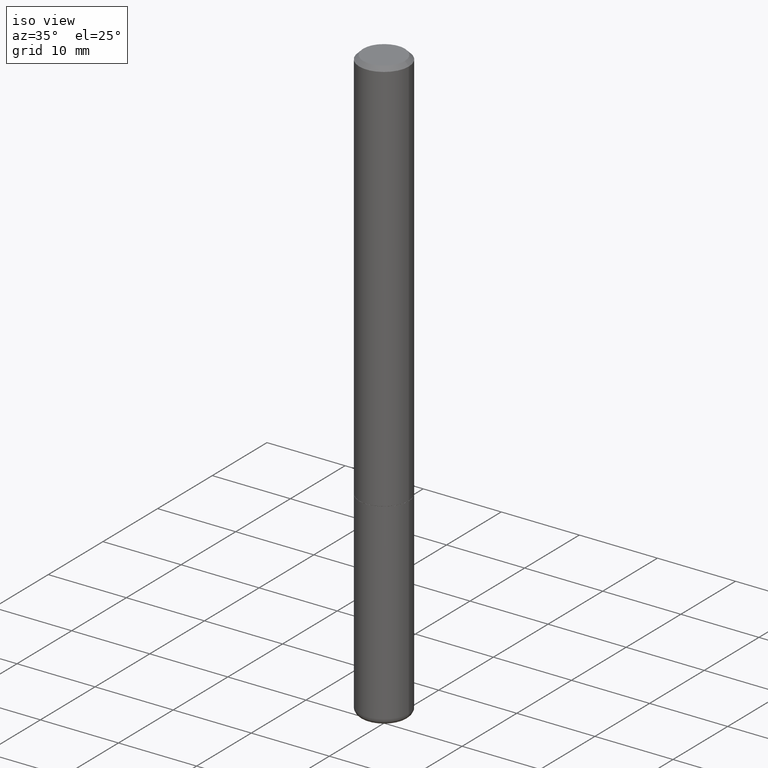
[diagram: clean part render]
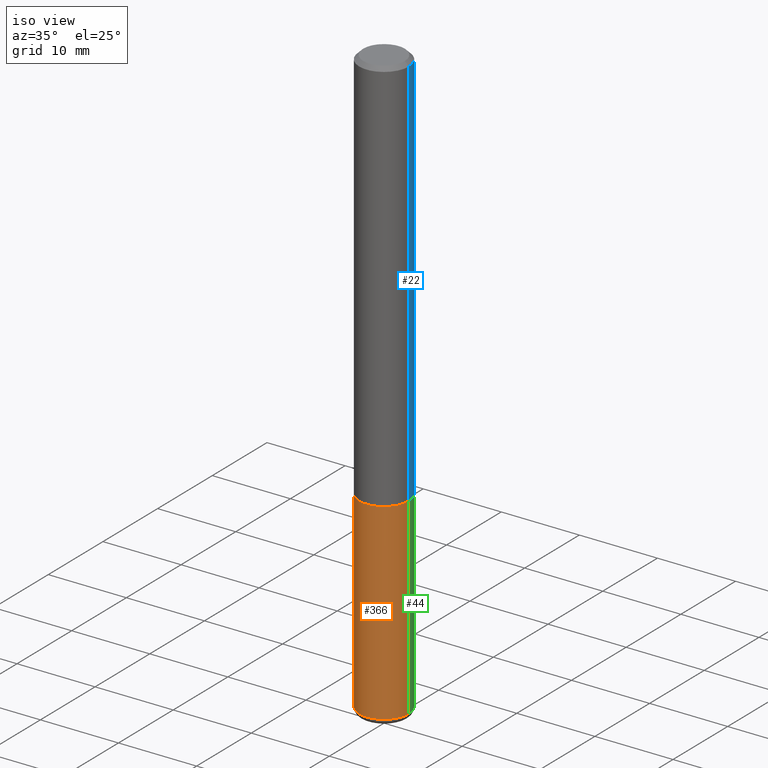
[diagram: same view with three faces highlighted in distinct colors, each labeled with its STEP entity id]
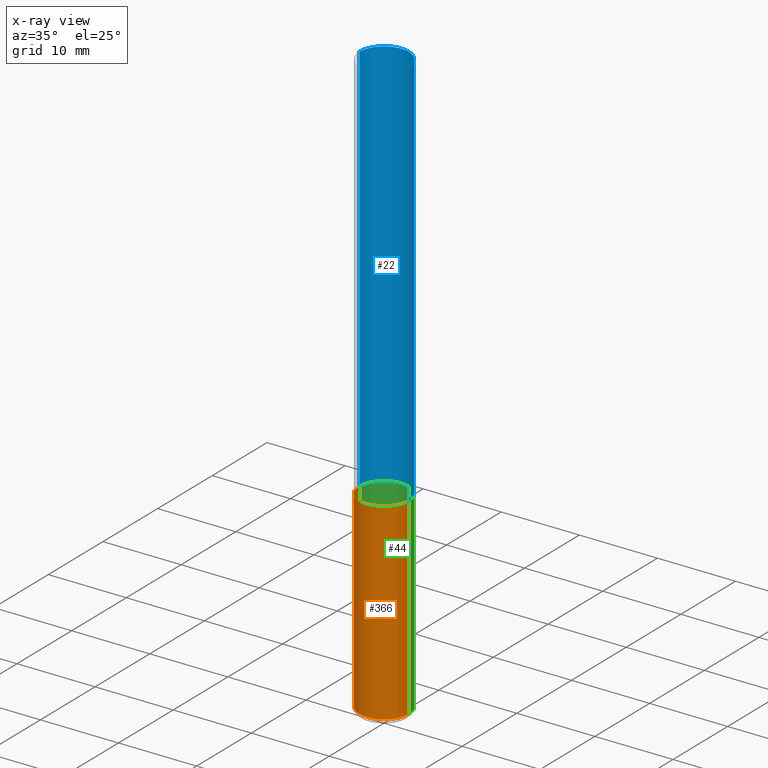
[diagram: x-ray of the same camera — body ghosted, the three highlighted faces saturated]
A machine part, iso view with three faces highlighted in distinct colors.
The next image is the same camera in x-ray (body ghosted, the three faces saturated) — at least one of them is partly hidden behind the body in this view.
Their STEP definitions:

[orange] entity #366 — the highlighted cylindrical surface (edge-blend (fillet) strip) has radius 3.175 mm, axis along (-0, 0, 1).
#31 = CARTESIAN_POINT ( 'NONE',  ( -0.1250000000000000000, -7.788152707325093026E-15, -2.000000000000000444 ) ) ;
#52 = CARTESIAN_POINT ( 'NONE',  ( 0.1249999999999998473, -1.124256991107492474E-14, -2.970000000000000195 ) ) ;
#58 = CIRCLE ( 'NONE', #373, 0.1250000000000000000 ) ;
#64 = CYLINDRICAL_SURFACE ( 'NONE', #200, 0.1250000000000000000 ) ;
#69 = CIRCLE ( 'NONE', #361, 0.1250000000000000000 ) ;
#75 = CARTESIAN_POINT ( 'NONE',  ( 7.263042354369856275E-29, -1.036969957636414298E-14, -2.970000000000000195 ) ) ;
#87 = VERTEX_POINT ( 'NONE', #103 ) ;
#103 = CARTESIAN_POINT ( 'NONE',  ( 0.1250000000000000000, -7.855833012397075293E-15, -2.000000000000000444 ) ) ;
#119 = CARTESIAN_POINT ( 'NONE',  ( 0.000000000000000000, 0.000000000000000000, 0.000000000000000000 ) ) ;
#121 = DIRECTION ( 'NONE',  ( 1.000000000000000000, -6.982962677686266711E-15, 4.876176775795935793E-29 ) ) ;
#146 = VECTOR ( 'NONE', #385, 39.37007874015748143 ) ;
#148 = DIRECTION ( 'NONE',  ( -2.445468806185136597E-29, 3.491481338843145583E-15, 1.000000000000000000 ) ) ;
#154 = EDGE_LOOP ( 'NONE', ( #346, #284, #320, #377 ) ) ;
#158 = DIRECTION ( 'NONE',  ( -2.445468806185136597E-29, 3.491481338843145583E-15, 1.000000000000000000 ) ) ;
#182 = DIRECTION ( 'NONE',  ( 1.000000000000000000, -6.982962677686262766E-15, 0.000000000000000000 ) ) ;
#187 = CARTESIAN_POINT ( 'NONE',  ( -0.1249999999999998473, -9.481521156664020907E-15, -2.970000000000000195 ) ) ;
#200 = AXIS2_PLACEMENT_3D ( 'NONE', #119, #158, #121 ) ;
#202 = DIRECTION ( 'NONE',  ( 1.000000000000000000, -6.982962677686262766E-15, 0.000000000000000000 ) ) ;
#227 = LINE ( 'NONE', #388, #280 ) ;
#241 = EDGE_CURVE ( 'NONE', #407, #315, #58, .T. ) ;
#245 = EDGE_CURVE ( 'NONE', #315, #87, #227, .T. ) ;
#246 = CARTESIAN_POINT ( 'NONE',  ( 4.890937612370273754E-29, -6.982962677686291954E-15, -2.000000000000000444 ) ) ;
#258 = DIRECTION ( 'NONE',  ( -2.445468806185136597E-29, 3.491481338843145583E-15, 1.000000000000000000 ) ) ;
#280 = VECTOR ( 'NONE', #314, 39.37007874015748143 ) ;
#284 = ORIENTED_EDGE ( 'NONE', *, *, #241, .T. ) ;
#308 = EDGE_CURVE ( 'NONE', #384, #87, #69, .T. ) ;
#314 = DIRECTION ( 'NONE',  ( -2.445468806185136877E-29, 3.491481338843145188E-15, 1.000000000000000000 ) ) ;
#315 = VERTEX_POINT ( 'NONE', #52 ) ;
#320 = ORIENTED_EDGE ( 'NONE', *, *, #245, .T. ) ;
#332 = FACE_OUTER_BOUND ( 'NONE', #154, .T. ) ;
#346 = ORIENTED_EDGE ( 'NONE', *, *, #403, .F. ) ;
#355 = LINE ( 'NONE', #386, #146 ) ;
#361 = AXIS2_PLACEMENT_3D ( 'NONE', #246, #148, #182 ) ;
#366 = ADVANCED_FACE ( 'NONE', ( #332 ), #64, .T. ) ;
#373 = AXIS2_PLACEMENT_3D ( 'NONE', #75, #258, #202 ) ;
#377 = ORIENTED_EDGE ( 'NONE', *, *, #308, .F. ) ;
#384 = VERTEX_POINT ( 'NONE', #31 ) ;
#385 = DIRECTION ( 'NONE',  ( -2.445468806185136877E-29, 3.491481338843145188E-15, 1.000000000000000000 ) ) ;
#386 = CARTESIAN_POINT ( 'NONE',  ( -0.1250000000000000000, 8.881784197001252323E-16, -6.148668862818632227E-30 ) ) ;
#388 = CARTESIAN_POINT ( 'NONE',  ( 0.1250000000000000000, -8.728703347107833388E-16, 6.095220969744919741E-30 ) ) ;
#403 = EDGE_CURVE ( 'NONE', #407, #384, #355, .T. ) ;
#407 = VERTEX_POINT ( 'NONE', #187 ) ;

[blue] entity #22 — the highlighted cylindrical surface (edge-blend (fillet) strip) has radius 3.175 mm, axis along (-0, 0, 1).
#2 = EDGE_CURVE ( 'NONE', #89, #54, #96, .T. ) ;
#12 = ORIENTED_EDGE ( 'NONE', *, *, #363, .F. ) ;
#22 = ADVANCED_FACE ( 'NONE', ( #25 ), #147, .T. ) ;
#25 = FACE_OUTER_BOUND ( 'NONE', #273, .T. ) ;
#39 = DIRECTION ( 'NONE',  ( -2.445468806185136597E-29, 3.491481338843145583E-15, 1.000000000000000000 ) ) ;
#43 = LINE ( 'NONE', #274, #111 ) ;
#54 = VERTEX_POINT ( 'NONE', #63 ) ;
#56 = AXIS2_PLACEMENT_3D ( 'NONE', #368, #39, #131 ) ;
#60 = EDGE_CURVE ( 'NONE', #216, #89, #199, .T. ) ;
#63 = CARTESIAN_POINT ( 'NONE',  ( -0.1249999999999999584, 8.030407079339200406E-16, -0.02000000000000006287 ) ) ;
#66 = CARTESIAN_POINT ( 'NONE',  ( 4.890937612370288923E-31, -6.982962677686312563E-17, -0.02000000000000006287 ) ) ;
#72 = CARTESIAN_POINT ( 'NONE',  ( 0.1249999999999999584, -9.273918764983043491E-16, -0.02000000000000006287 ) ) ;
#73 = AXIS2_PLACEMENT_3D ( 'NONE', #294, #252, #91 ) ;
#89 = VERTEX_POINT ( 'NONE', #224 ) ;
#91 = DIRECTION ( 'NONE',  ( 1.000000000000000000, -6.982962677686266711E-15, 4.876176775795935232E-29 ) ) ;
#96 = LINE ( 'NONE', #177, #334 ) ;
#111 = VECTOR ( 'NONE', #404, 39.37007874015748143 ) ;
#113 = VERTEX_POINT ( 'NONE', #72 ) ;
#131 = DIRECTION ( 'NONE',  ( 1.000000000000000000, -6.982962677686264344E-15, 0.000000000000000000 ) ) ;
#147 = CYLINDRICAL_SURFACE ( 'NONE', #73, 0.1250000000000001110 ) ;
#177 = CARTESIAN_POINT ( 'NONE',  ( -0.1250000000000001110, 8.881784197001260212E-16, -6.148668862818637832E-30 ) ) ;
#183 = AXIS2_PLACEMENT_3D ( 'NONE', #66, #257, #262 ) ;
#199 = CIRCLE ( 'NONE', #56, 0.1250000000000002498 ) ;
#216 = VERTEX_POINT ( 'NONE', #303 ) ;
#219 = CIRCLE ( 'NONE', #183, 0.1249999999999999584 ) ;
#224 = CARTESIAN_POINT ( 'NONE',  ( -0.1250000000000002776, -2.636471991862024185E-15, -1.999000000000000110 ) ) ;
#248 = ORIENTED_EDGE ( 'NONE', *, *, #2, .T. ) ;
#252 = DIRECTION ( 'NONE',  ( -2.445468806185136597E-29, 3.491481338843145583E-15, 1.000000000000000000 ) ) ;
#257 = DIRECTION ( 'NONE',  ( -2.445468806185136597E-29, 3.491481338843145583E-15, 1.000000000000000000 ) ) ;
#262 = DIRECTION ( 'NONE',  ( 1.000000000000000000, -6.982962677686267499E-15, 0.000000000000000000 ) ) ;
#273 = EDGE_LOOP ( 'NONE', ( #323, #248, #12, #291 ) ) ;
#274 = CARTESIAN_POINT ( 'NONE',  ( 0.1250000000000001110, -8.728703347107841277E-16, 6.095220969744924646E-30 ) ) ;
#291 = ORIENTED_EDGE ( 'NONE', *, *, #300, .F. ) ;
#294 = CARTESIAN_POINT ( 'NONE',  ( 0.000000000000000000, 0.000000000000000000, 0.000000000000000000 ) ) ;
#300 = EDGE_CURVE ( 'NONE', #216, #113, #43, .T. ) ;
#303 = CARTESIAN_POINT ( 'NONE',  ( 0.1250000000000002498, -7.852341531058233864E-15, -1.999000000000000110 ) ) ;
#323 = ORIENTED_EDGE ( 'NONE', *, *, #60, .T. ) ;
#334 = VECTOR ( 'NONE', #382, 39.37007874015748143 ) ;
#363 = EDGE_CURVE ( 'NONE', #113, #54, #219, .T. ) ;
#368 = CARTESIAN_POINT ( 'NONE',  ( 4.888492143564088712E-29, -6.979471196347448158E-15, -1.999000000000000110 ) ) ;
#382 = DIRECTION ( 'NONE',  ( -2.445468806185136877E-29, 3.491481338843145188E-15, 1.000000000000000000 ) ) ;
#404 = DIRECTION ( 'NONE',  ( -2.445468806185136877E-29, 3.491481338843145188E-15, 1.000000000000000000 ) ) ;

[green] entity #44 — the highlighted cylindrical surface (edge-blend (fillet) strip) has radius 3.175 mm, axis along (-0, 0, 1).
#30 = ORIENTED_EDGE ( 'NONE', *, *, #221, .F. ) ;
#31 = CARTESIAN_POINT ( 'NONE',  ( -0.1250000000000000000, -7.788152707325093026E-15, -2.000000000000000444 ) ) ;
#34 = CARTESIAN_POINT ( 'NONE',  ( 7.263042354369856275E-29, -1.036969957636414298E-14, -2.970000000000000195 ) ) ;
#44 = ADVANCED_FACE ( 'NONE', ( #351 ), #353, .T. ) ;
#52 = CARTESIAN_POINT ( 'NONE',  ( 0.1249999999999998473, -1.124256991107492474E-14, -2.970000000000000195 ) ) ;
#74 = CIRCLE ( 'NONE', #261, 0.1250000000000000000 ) ;
#87 = VERTEX_POINT ( 'NONE', #103 ) ;
#97 = CARTESIAN_POINT ( 'NONE',  ( 4.890937612370273754E-29, -6.982962677686291954E-15, -2.000000000000000444 ) ) ;
#103 = CARTESIAN_POINT ( 'NONE',  ( 0.1250000000000000000, -7.855833012397075293E-15, -2.000000000000000444 ) ) ;
#118 = DIRECTION ( 'NONE',  ( 1.000000000000000000, -6.982962677686266711E-15, 4.876176775795935793E-29 ) ) ;
#126 = DIRECTION ( 'NONE',  ( -2.445468806185136597E-29, 3.491481338843145583E-15, 1.000000000000000000 ) ) ;
#127 = AXIS2_PLACEMENT_3D ( 'NONE', #97, #126, #395 ) ;
#140 = ORIENTED_EDGE ( 'NONE', *, *, #245, .F. ) ;
#146 = VECTOR ( 'NONE', #385, 39.37007874015748143 ) ;
#156 = DIRECTION ( 'NONE',  ( -2.445468806185136597E-29, 3.491481338843145583E-15, 1.000000000000000000 ) ) ;
#160 = EDGE_CURVE ( 'NONE', #315, #407, #74, .T. ) ;
#169 = ORIENTED_EDGE ( 'NONE', *, *, #160, .T. ) ;
#178 = EDGE_LOOP ( 'NONE', ( #169, #279, #30, #140 ) ) ;
#187 = CARTESIAN_POINT ( 'NONE',  ( -0.1249999999999998473, -9.481521156664020907E-15, -2.970000000000000195 ) ) ;
#221 = EDGE_CURVE ( 'NONE', #87, #384, #321, .T. ) ;
#227 = LINE ( 'NONE', #388, #280 ) ;
#245 = EDGE_CURVE ( 'NONE', #315, #87, #227, .T. ) ;
#261 = AXIS2_PLACEMENT_3D ( 'NONE', #34, #156, #296 ) ;
#279 = ORIENTED_EDGE ( 'NONE', *, *, #403, .T. ) ;
#280 = VECTOR ( 'NONE', #314, 39.37007874015748143 ) ;
#296 = DIRECTION ( 'NONE',  ( 1.000000000000000000, -6.982962677686262766E-15, 0.000000000000000000 ) ) ;
#314 = DIRECTION ( 'NONE',  ( -2.445468806185136877E-29, 3.491481338843145188E-15, 1.000000000000000000 ) ) ;
#315 = VERTEX_POINT ( 'NONE', #52 ) ;
#318 = AXIS2_PLACEMENT_3D ( 'NONE', #324, #409, #118 ) ;
#321 = CIRCLE ( 'NONE', #127, 0.1250000000000000000 ) ;
#324 = CARTESIAN_POINT ( 'NONE',  ( 0.000000000000000000, 0.000000000000000000, 0.000000000000000000 ) ) ;
#351 = FACE_OUTER_BOUND ( 'NONE', #178, .T. ) ;
#353 = CYLINDRICAL_SURFACE ( 'NONE', #318, 0.1250000000000000000 ) ;
#355 = LINE ( 'NONE', #386, #146 ) ;
#384 = VERTEX_POINT ( 'NONE', #31 ) ;
#385 = DIRECTION ( 'NONE',  ( -2.445468806185136877E-29, 3.491481338843145188E-15, 1.000000000000000000 ) ) ;
#386 = CARTESIAN_POINT ( 'NONE',  ( -0.1250000000000000000, 8.881784197001252323E-16, -6.148668862818632227E-30 ) ) ;
#388 = CARTESIAN_POINT ( 'NONE',  ( 0.1250000000000000000, -8.728703347107833388E-16, 6.095220969744919741E-30 ) ) ;
#395 = DIRECTION ( 'NONE',  ( 1.000000000000000000, -6.982962677686262766E-15, 0.000000000000000000 ) ) ;
#403 = EDGE_CURVE ( 'NONE', #407, #384, #355, .T. ) ;
#407 = VERTEX_POINT ( 'NONE', #187 ) ;
#409 = DIRECTION ( 'NONE',  ( -2.445468806185136597E-29, 3.491481338843145583E-15, 1.000000000000000000 ) ) ;